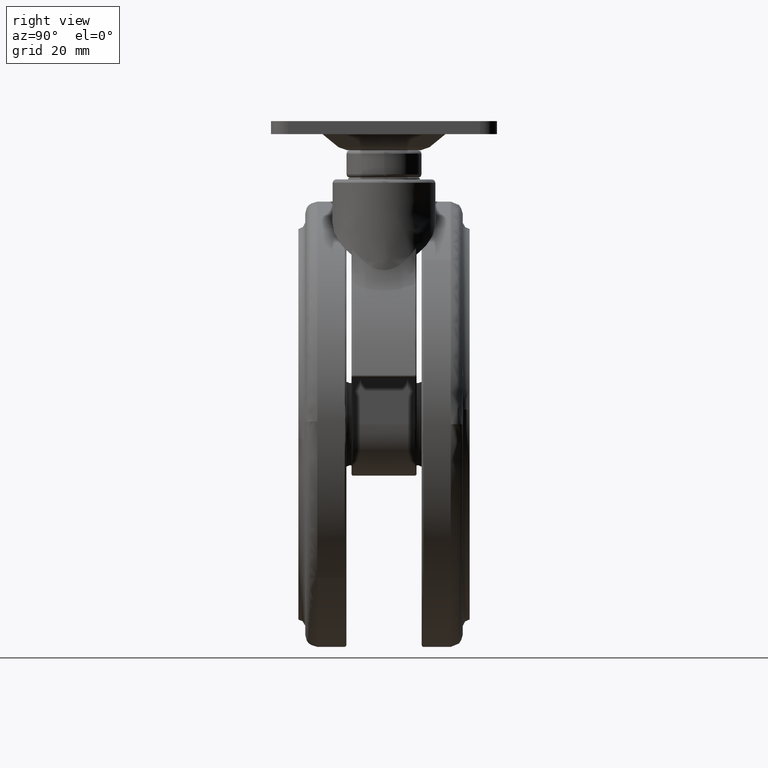
[diagram: clean part render]
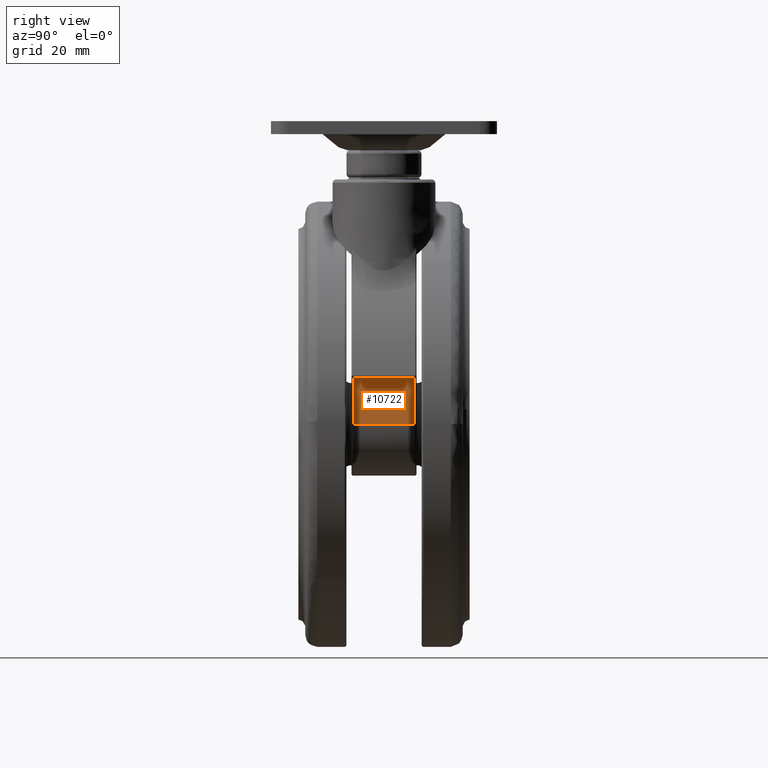
[diagram: same view with one face highlighted and labeled with its STEP entity id]
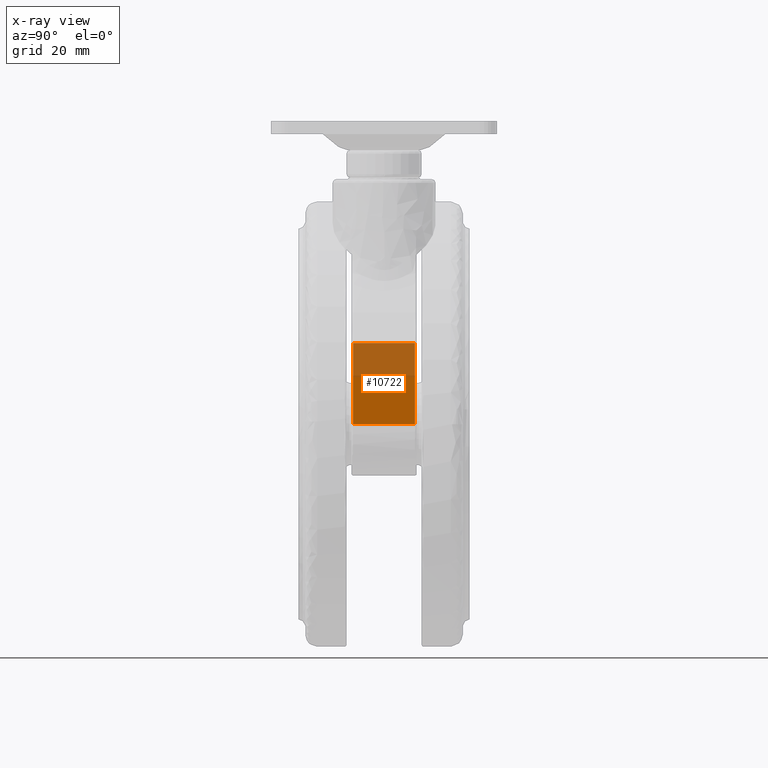
[diagram: x-ray of the same camera — body ghosted, the highlighted face saturated]
A machine part, right view. The second image highlights one B-rep face of the part: STEP entity #10722.
The next image is the same camera in x-ray: the body ghosted, the highlighted face saturated — about 42% of this face is hidden behind the body in this view.
In plain terms, the highlighted face is a freeform B-spline surface patch.
Its self-contained STEP definition (entity closure, byte-faithful):
#8544=CARTESIAN_POINT('',(-20.0,9.0,-71.500000000000000));
#8545=VERTEX_POINT('',#8544);
#8559=CARTESIAN_POINT('',(-20.0,-8.999999999999789,-71.500000000000000));
#8560=VERTEX_POINT('',#8559);
#8561=CARTESIAN_POINT('',(-20.0,9.0,-71.500000000000000));
#8562=CARTESIAN_POINT('',(-20.0,-8.999999999999789,-71.500000000000000));
#8563=QUASI_UNIFORM_CURVE('',1,(#8561,#8562),.UNSPECIFIED.,.F.,.U.);
#8564=EDGE_CURVE('',#8545,#8560,#8563,.T.);
#9174=CARTESIAN_POINT('',(-20.0,9.0,-47.799999999999997));
#9175=VERTEX_POINT('',#9174);
#9189=CARTESIAN_POINT('',(-20.0,9.0,-71.500000000000000));
#9190=CARTESIAN_POINT('',(-20.0,9.0,-47.799999999999997));
#9191=QUASI_UNIFORM_CURVE('',1,(#9189,#9190),.UNSPECIFIED.,.F.,.U.);
#9192=EDGE_CURVE('',#8545,#9175,#9191,.T.);
#9369=CARTESIAN_POINT('',(-20.0,-8.999999999999789,-47.799999999999997));
#9370=VERTEX_POINT('',#9369);
#9371=CARTESIAN_POINT('',(-20.0,-8.999999999999789,-47.799999999999997));
#9372=CARTESIAN_POINT('',(-20.0,-8.999999999999789,-71.500000000000000));
#9373=QUASI_UNIFORM_CURVE('',1,(#9371,#9372),.UNSPECIFIED.,.F.,.U.);
#9374=EDGE_CURVE('',#9370,#8560,#9373,.T.);
#10707=CARTESIAN_POINT('',(-20.0,-9.899099965112285,-46.616185045935197));
#10708=CARTESIAN_POINT('',(-20.0,-9.899099965112285,-72.683815589748363));
#10709=CARTESIAN_POINT('',(-20.0,9.899100447910119,-46.616185045935197));
#10710=CARTESIAN_POINT('',(-20.0,9.899100447910119,-72.683815589748363));
#10711=B_SPLINE_SURFACE_WITH_KNOTS('',1,1,((#10707,#10709),(#10708,#10710)),.UNSPECIFIED.,.F.,.F.,.U.,(2,2),(2,2),(0.0,26.067630543813170),(0.0,19.798200413022400),.UNSPECIFIED.);
#10712=ORIENTED_EDGE('',*,*,#8564,.F.);
#10713=ORIENTED_EDGE('',*,*,#9192,.T.);
#10714=CARTESIAN_POINT('',(-20.0,9.0,-47.799999999999997));
#10715=CARTESIAN_POINT('',(-20.0,-8.999999999999789,-47.799999999999997));
#10716=QUASI_UNIFORM_CURVE('',1,(#10714,#10715),.UNSPECIFIED.,.F.,.U.);
#10717=EDGE_CURVE('',#9175,#9370,#10716,.T.);
#10718=ORIENTED_EDGE('',*,*,#10717,.T.);
#10719=ORIENTED_EDGE('',*,*,#9374,.T.);
#10720=EDGE_LOOP('',(#10712,#10713,#10718,#10719));
#10721=FACE_OUTER_BOUND('',#10720,.T.);
#10722=ADVANCED_FACE('',(#10721),#10711,.T.);